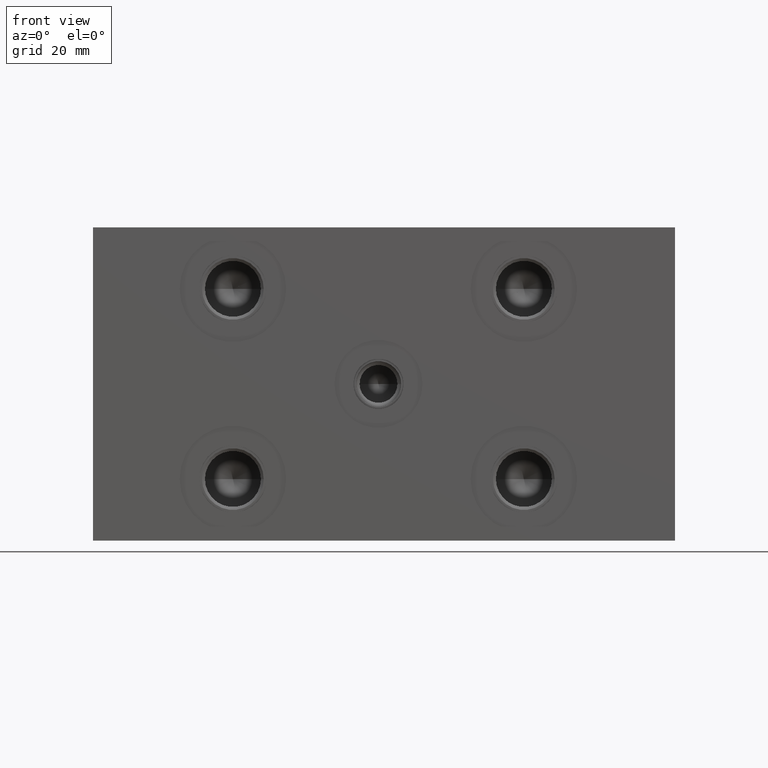
[diagram: clean part render]
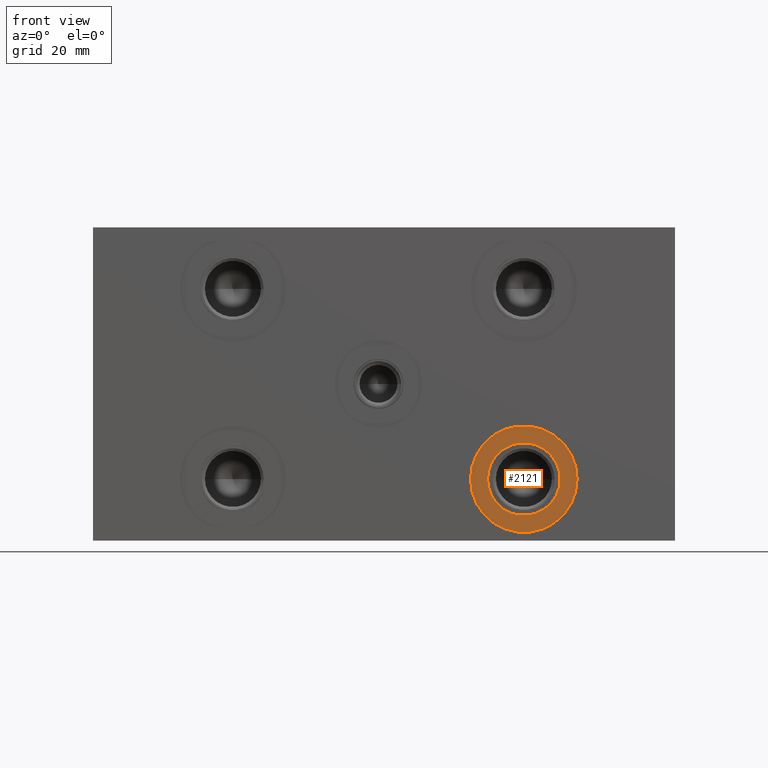
[diagram: same view with one face highlighted and labeled with its STEP entity id]
A machine part, front view. The second image highlights one B-rep face of the part: STEP entity #2121.
In plain terms, the highlighted planar face has unit normal (0, 1, 0).
Its self-contained STEP definition (entity closure, byte-faithful):
#2090=CARTESIAN_POINT('',(137.350499999999950,0.762000000000000,17.475199999999997));
#2091=VERTEX_POINT('',#2090);
#2092=CARTESIAN_POINT('',(122.224799999999990,0.762000000000000,17.475199999999997));
#2093=DIRECTION('',(0.0,1.0,0.0));
#2094=DIRECTION('',(-1.0,0.0,0.0));
#2095=AXIS2_PLACEMENT_3D('',#2092,#2093,#2094);
#2096=CIRCLE('',#2095,15.125699999999998);
#2097=EDGE_CURVE('',#2091,#2091,#2096,.T.);
#2102=CARTESIAN_POINT('',(122.224799999999990,0.762000000000000,17.475199999999997));
#2103=DIRECTION('',(0.0,1.0,0.0));
#2104=DIRECTION('',(0.0,0.0,1.0));
#2105=AXIS2_PLACEMENT_3D('',#2102,#2103,#2104);
#2106=PLANE('',#2105);
#2107=ORIENTED_EDGE('',*,*,#2097,.F.);
#2108=EDGE_LOOP('',(#2107));
#2109=FACE_OUTER_BOUND('',#2108,.T.);
#2110=CARTESIAN_POINT('',(132.524499999999990,0.762000000000000,17.475199999999997));
#2111=VERTEX_POINT('',#2110);
#2112=CARTESIAN_POINT('',(122.224799999999990,0.762000000000000,17.475199999999997));
#2113=DIRECTION('',(0.0,1.0,0.0));
#2114=DIRECTION('',(-1.0,0.0,0.0));
#2115=AXIS2_PLACEMENT_3D('',#2112,#2113,#2114);
#2116=CIRCLE('',#2115,10.299699999999998);
#2117=EDGE_CURVE('',#2111,#2111,#2116,.T.);
#2118=ORIENTED_EDGE('',*,*,#2117,.T.);
#2119=EDGE_LOOP('',(#2118));
#2120=FACE_BOUND('',#2119,.T.);
#2121=ADVANCED_FACE('',(#2109,#2120),#2106,.F.);